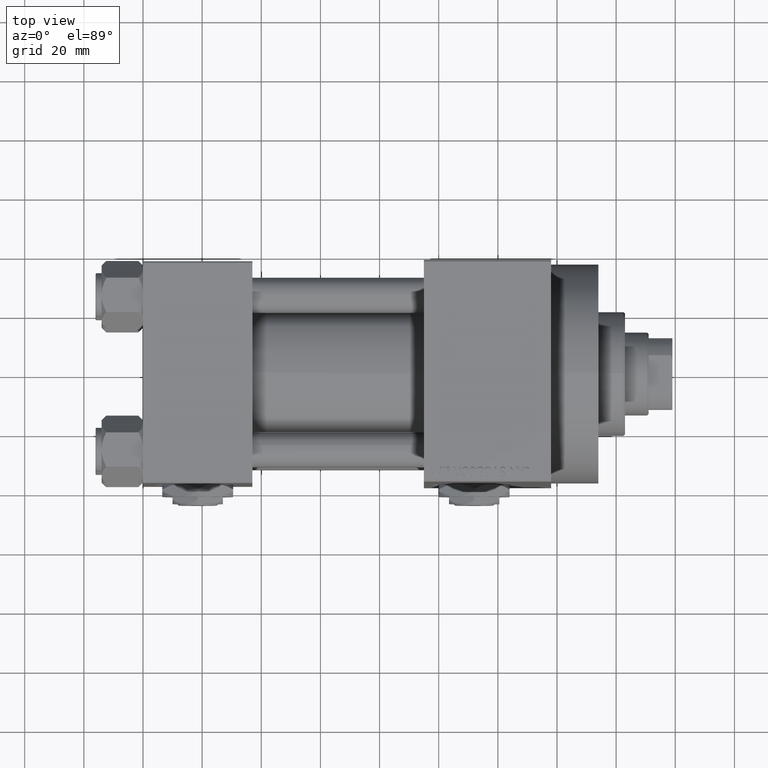
[diagram: clean part render]
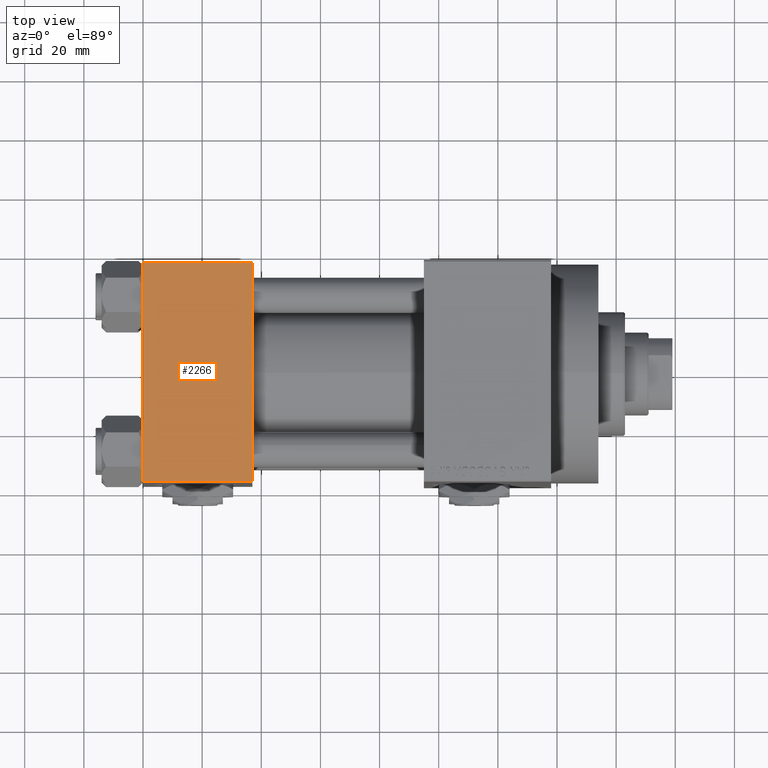
[diagram: same view with one face highlighted and labeled with its STEP entity id]
A machine part, top view. The second image highlights one B-rep face of the part: STEP entity #2266.
In plain terms, the highlighted planar face has unit normal (0, 0, -1).
Its self-contained STEP definition (entity closure, byte-faithful):
#480 = DIRECTION ( 'NONE',  ( 0.000000000000000000, 1.000000000000000000, 9.251858538542971581E-17 ) ) ;
#1150 = VERTEX_POINT ( 'NONE', #23155 ) ;
#2266 = ADVANCED_FACE ( 'NONE', ( #8005 ), #23490, .F. ) ;
#3548 = CARTESIAN_POINT ( 'NONE',  ( 0.000000000000000000, 36.99999999999999289, 37.50000000000000000 ) ) ;
#3954 = VECTOR ( 'NONE', #9797, 1000.000000000000000 ) ;
#6761 = LINE ( 'NONE', #48059, #22290 ) ;
#8005 = FACE_OUTER_BOUND ( 'NONE', #29101, .T. ) ;
#9797 = DIRECTION ( 'NONE',  ( 0.000000000000000000, -1.000000000000000000, -9.251858538542971581E-17 ) ) ;
#11760 = CARTESIAN_POINT ( 'NONE',  ( 37.00000000000000000, 37.49999999999999289, 37.50000000000000000 ) ) ;
#15577 = ORIENTED_EDGE ( 'NONE', *, *, #49440, .T. ) ;
#15678 = CARTESIAN_POINT ( 'NONE',  ( 37.00000000000000000, -37.00000000000000711, 37.49999999999999289 ) ) ;
#16892 = CARTESIAN_POINT ( 'NONE',  ( 37.00000000000000000, -37.00000000000000711, 37.49999999999999289 ) ) ;
#18448 = CARTESIAN_POINT ( 'NONE',  ( 37.00000000000000000, 36.99999999999999289, 37.50000000000000000 ) ) ;
#20388 = ORIENTED_EDGE ( 'NONE', *, *, #25983, .T. ) ;
#22001 = DIRECTION ( 'NONE',  ( 0.000000000000000000, -1.000000000000000000, -9.251858538542971581E-17 ) ) ;
#22185 = CARTESIAN_POINT ( 'NONE',  ( 0.000000000000000000, 36.99999999999999289, 37.50000000000000000 ) ) ;
#22290 = VECTOR ( 'NONE', #22001, 1000.000000000000000 ) ;
#23155 = CARTESIAN_POINT ( 'NONE',  ( 0.000000000000000000, -37.00000000000000711, 37.49999999999999289 ) ) ;
#23490 = PLANE ( 'NONE',  #47232 ) ;
#25983 = EDGE_CURVE ( 'NONE', #1150, #34250, #32376, .T. ) ;
#28523 = VERTEX_POINT ( 'NONE', #3548 ) ;
#29101 = EDGE_LOOP ( 'NONE', ( #15577, #20388, #42909, #32311 ) ) ;
#29595 = EDGE_CURVE ( 'NONE', #30877, #28523, #38447, .T. ) ;
#30041 = VECTOR ( 'NONE', #47420, 1000.000000000000000 ) ;
#30146 = VECTOR ( 'NONE', #30198, 1000.000000000000000 ) ;
#30198 = DIRECTION ( 'NONE',  ( -1.000000000000000000, 0.000000000000000000, 0.000000000000000000 ) ) ;
#30877 = VERTEX_POINT ( 'NONE', #18448 ) ;
#30999 = DIRECTION ( 'NONE',  ( 0.000000000000000000, 9.251858538542971581E-17, -1.000000000000000000 ) ) ;
#32311 = ORIENTED_EDGE ( 'NONE', *, *, #29595, .T. ) ;
#32376 = LINE ( 'NONE', #16892, #30041 ) ;
#34250 = VERTEX_POINT ( 'NONE', #15678 ) ;
#36049 = CARTESIAN_POINT ( 'NONE',  ( 0.000000000000000000, 37.49999999999999289, 37.50000000000000000 ) ) ;
#38447 = LINE ( 'NONE', #22185, #30146 ) ;
#40310 = LINE ( 'NONE', #36049, #3954 ) ;
#42909 = ORIENTED_EDGE ( 'NONE', *, *, #48131, .F. ) ;
#47232 = AXIS2_PLACEMENT_3D ( 'NONE', #11760, #30999, #480 ) ;
#47420 = DIRECTION ( 'NONE',  ( 1.000000000000000000, 0.000000000000000000, 0.000000000000000000 ) ) ;
#48059 = CARTESIAN_POINT ( 'NONE',  ( 37.00000000000000000, 37.49999999999999289, 37.50000000000000000 ) ) ;
#48131 = EDGE_CURVE ( 'NONE', #30877, #34250, #6761, .T. ) ;
#49440 = EDGE_CURVE ( 'NONE', #28523, #1150, #40310, .T. ) ;